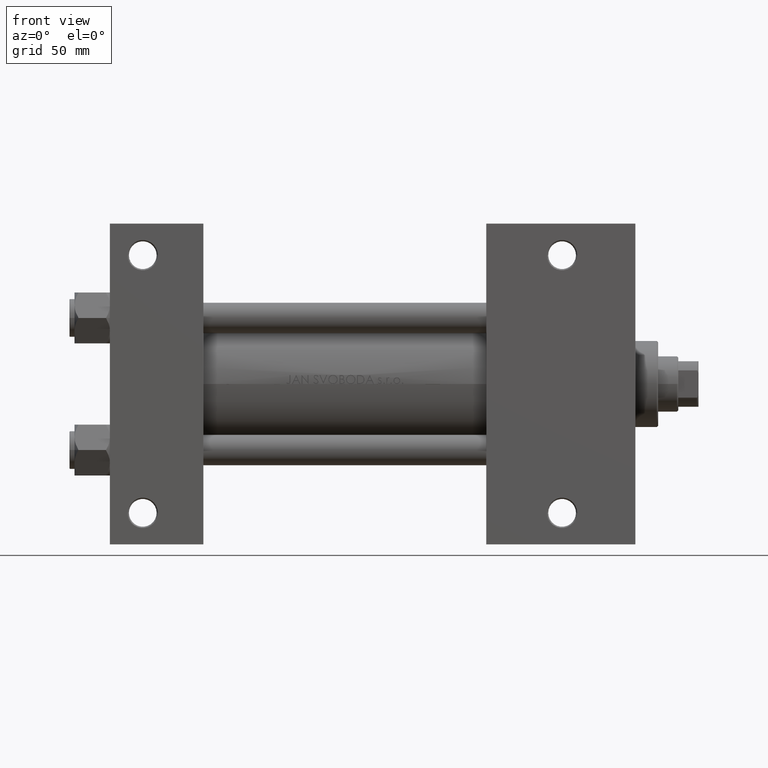
[diagram: clean part render]
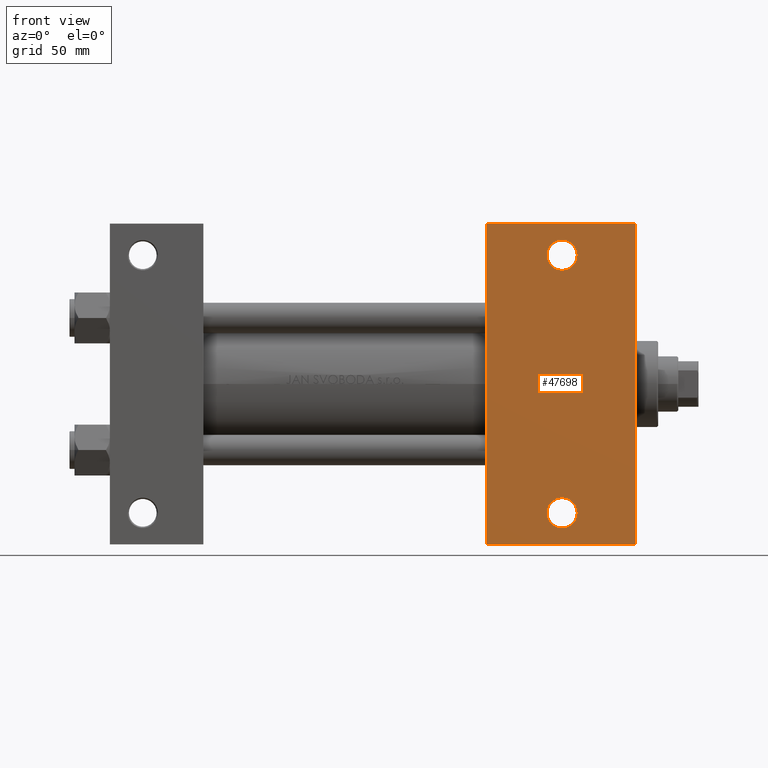
[diagram: same view with one face highlighted and labeled with its STEP entity id]
A machine part, front view. The second image highlights one B-rep face of the part: STEP entity #47698.
In plain terms, the highlighted planar face has unit normal (0, -1, 0).
Its self-contained STEP definition (entity closure, byte-faithful):
#580 = AXIS2_PLACEMENT_3D ( 'NONE', #26438, #4257, #19449 ) ;
#1324 = CARTESIAN_POINT ( 'NONE',  ( 179.0000000000000000, -51.00000000000000000, -37.50000000000000000 ) ) ;
#1499 = DIRECTION ( 'NONE',  ( -0.000000000000000000, -0.000000000000000000, 1.000000000000000000 ) ) ;
#1744 = CARTESIAN_POINT ( 'NONE',  ( 179.0000000000000000, 51.00000000000000000, -37.50000000000000000 ) ) ;
#1878 = PLANE ( 'NONE',  #44000 ) ;
#4257 = DIRECTION ( 'NONE',  ( -0.000000000000000000, -0.000000000000000000, 1.000000000000000000 ) ) ;
#4341 = CARTESIAN_POINT ( 'NONE',  ( 149.0000000000000284, 63.49999999999997158, -37.50000000000000000 ) ) ;
#4524 = EDGE_LOOP ( 'NONE', ( #19260, #48667, #10076, #5577 ) ) ;
#4553 = AXIS2_PLACEMENT_3D ( 'NONE', #1744, #1499, #39363 ) ;
#4715 = EDGE_CURVE ( 'NONE', #8055, #47927, #14142, .T. ) ;
#4766 = EDGE_CURVE ( 'NONE', #47927, #8055, #10927, .T. ) ;
#4905 = ORIENTED_EDGE ( 'NONE', *, *, #22816, .T. ) ;
#5054 = EDGE_CURVE ( 'NONE', #40161, #42775, #14912, .T. ) ;
#5438 = CARTESIAN_POINT ( 'NONE',  ( 149.0000000000000000, -63.50000000000000000, -37.50000000000000000 ) ) ;
#5577 = ORIENTED_EDGE ( 'NONE', *, *, #9741, .T. ) ;
#5858 = DIRECTION ( 'NONE',  ( -1.000000000000000000, 0.000000000000000000, -0.000000000000000000 ) ) ;
#6016 = EDGE_LOOP ( 'NONE', ( #18313, #4905 ) ) ;
#6103 = DIRECTION ( 'NONE',  ( 0.000000000000000000, 0.000000000000000000, -1.000000000000000000 ) ) ;
#6943 = CARTESIAN_POINT ( 'NONE',  ( 173.0005000000000450, 51.00000000000000000, -37.50000000000000000 ) ) ;
#7288 = AXIS2_PLACEMENT_3D ( 'NONE', #1324, #39191, #20260 ) ;
#8055 = VERTEX_POINT ( 'NONE', #6943 ) ;
#9337 = VECTOR ( 'NONE', #45287, 1000.000000000000000 ) ;
#9607 = CARTESIAN_POINT ( 'NONE',  ( 208.0000000000000000, 37.50000000000000000, -37.50000000000000000 ) ) ;
#9741 = EDGE_CURVE ( 'NONE', #42775, #33138, #30179, .T. ) ;
#9857 = FACE_BOUND ( 'NONE', #21775, .T. ) ;
#10076 = ORIENTED_EDGE ( 'NONE', *, *, #5054, .T. ) ;
#10578 = CARTESIAN_POINT ( 'NONE',  ( 184.9994999999999266, 51.00000000000000000, -37.50000000000000000 ) ) ;
#10927 = CIRCLE ( 'NONE', #4553, 5.999499999999935440 ) ;
#11252 = CARTESIAN_POINT ( 'NONE',  ( 149.0000000000000000, -63.50000000000000000, -37.50000000000000000 ) ) ;
#11758 = AXIS2_PLACEMENT_3D ( 'NONE', #30727, #34702, #45908 ) ;
#13661 = CARTESIAN_POINT ( 'NONE',  ( 173.0005000000000450, -51.00000000000000000, -37.50000000000000000 ) ) ;
#13998 = VERTEX_POINT ( 'NONE', #13661 ) ;
#14142 = CIRCLE ( 'NONE', #580, 5.999499999999935440 ) ;
#14912 = LINE ( 'NONE', #30103, #9337 ) ;
#17628 = CARTESIAN_POINT ( 'NONE',  ( 184.9994999999999266, -51.00000000000000000, -37.50000000000000000 ) ) ;
#17865 = CARTESIAN_POINT ( 'NONE',  ( 208.0000000000000284, -63.50000000000002842, -37.50000000000000000 ) ) ;
#18313 = ORIENTED_EDGE ( 'NONE', *, *, #30465, .T. ) ;
#19260 = ORIENTED_EDGE ( 'NONE', *, *, #45173, .F. ) ;
#19268 = DIRECTION ( 'NONE',  ( 1.000000000000000000, 4.704334850106593822E-16, 0.000000000000000000 ) ) ;
#19449 = DIRECTION ( 'NONE',  ( -1.000000000000000000, 0.000000000000000000, 0.000000000000000000 ) ) ;
#19929 = DIRECTION ( 'NONE',  ( 0.000000000000000000, -1.000000000000000000, 0.000000000000000000 ) ) ;
#20260 = DIRECTION ( 'NONE',  ( -1.000000000000000000, 0.000000000000000000, 0.000000000000000000 ) ) ;
#21293 = VERTEX_POINT ( 'NONE', #4341 ) ;
#21775 = EDGE_LOOP ( 'NONE', ( #44509, #39098 ) ) ;
#22816 = EDGE_CURVE ( 'NONE', #30887, #13998, #28770, .T. ) ;
#23274 = VECTOR ( 'NONE', #19929, 1000.000000000000000 ) ;
#26438 = CARTESIAN_POINT ( 'NONE',  ( 179.0000000000000000, 51.00000000000000000, -37.50000000000000000 ) ) ;
#28770 = CIRCLE ( 'NONE', #7288, 5.999499999999935440 ) ;
#30103 = CARTESIAN_POINT ( 'NONE',  ( 208.0000000000000000, 37.50000000000000000, -37.50000000000000000 ) ) ;
#30179 = LINE ( 'NONE', #11252, #35614 ) ;
#30465 = EDGE_CURVE ( 'NONE', #13998, #30887, #43576, .T. ) ;
#30727 = CARTESIAN_POINT ( 'NONE',  ( 179.0000000000000000, -51.00000000000000000, -37.50000000000000000 ) ) ;
#30887 = VERTEX_POINT ( 'NONE', #17628 ) ;
#33138 = VERTEX_POINT ( 'NONE', #5438 ) ;
#33712 = LINE ( 'NONE', #41186, #48795 ) ;
#34379 = LINE ( 'NONE', #38611, #23274 ) ;
#34702 = DIRECTION ( 'NONE',  ( -0.000000000000000000, -0.000000000000000000, 1.000000000000000000 ) ) ;
#35614 = VECTOR ( 'NONE', #38150, 1000.000000000000000 ) ;
#37782 = CARTESIAN_POINT ( 'NONE',  ( 208.0000000000000568, 63.50000000000000000, -37.50000000000000000 ) ) ;
#38150 = DIRECTION ( 'NONE',  ( -1.000000000000000000, 4.704334850106593822E-16, -0.000000000000000000 ) ) ;
#38611 = CARTESIAN_POINT ( 'NONE',  ( 149.0000000000000000, 37.50000000000000000, -37.50000000000000000 ) ) ;
#39098 = ORIENTED_EDGE ( 'NONE', *, *, #4766, .T. ) ;
#39191 = DIRECTION ( 'NONE',  ( -0.000000000000000000, -0.000000000000000000, 1.000000000000000000 ) ) ;
#39363 = DIRECTION ( 'NONE',  ( -1.000000000000000000, 0.000000000000000000, 0.000000000000000000 ) ) ;
#39988 = FACE_OUTER_BOUND ( 'NONE', #4524, .T. ) ;
#40161 = VERTEX_POINT ( 'NONE', #37782 ) ;
#40226 = FACE_BOUND ( 'NONE', #6016, .T. ) ;
#41186 = CARTESIAN_POINT ( 'NONE',  ( 149.0000000000000284, 63.49999999999997158, -37.50000000000000000 ) ) ;
#42775 = VERTEX_POINT ( 'NONE', #17865 ) ;
#43576 = CIRCLE ( 'NONE', #11758, 5.999499999999935440 ) ;
#44000 = AXIS2_PLACEMENT_3D ( 'NONE', #9607, #6103, #5858 ) ;
#44509 = ORIENTED_EDGE ( 'NONE', *, *, #4715, .T. ) ;
#45173 = EDGE_CURVE ( 'NONE', #21293, #33138, #34379, .T. ) ;
#45287 = DIRECTION ( 'NONE',  ( 0.000000000000000000, -1.000000000000000000, 0.000000000000000000 ) ) ;
#45908 = DIRECTION ( 'NONE',  ( -1.000000000000000000, 0.000000000000000000, 0.000000000000000000 ) ) ;
#47010 = EDGE_CURVE ( 'NONE', #21293, #40161, #33712, .T. ) ;
#47698 = ADVANCED_FACE ( 'NONE', ( #9857, #40226, #39988 ), #1878, .T. ) ;
#47927 = VERTEX_POINT ( 'NONE', #10578 ) ;
#48667 = ORIENTED_EDGE ( 'NONE', *, *, #47010, .T. ) ;
#48795 = VECTOR ( 'NONE', #19268, 1000.000000000000000 ) ;